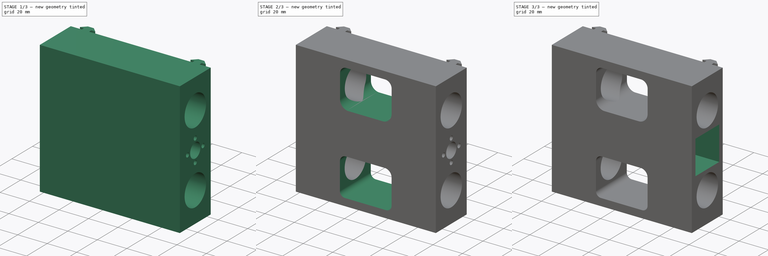
[diagram: build sequence overview — one tinted view per stage of 3, left to right]
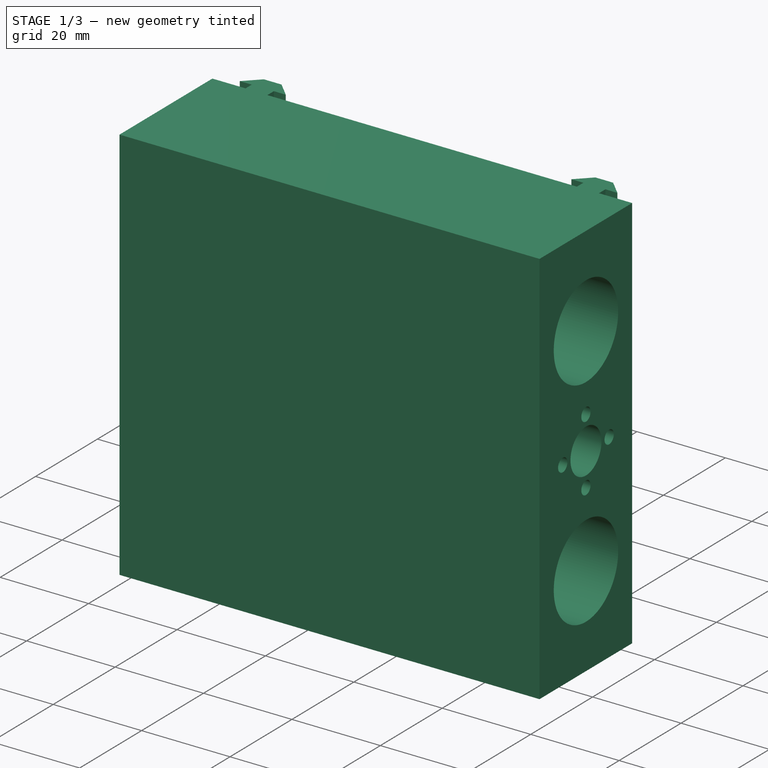
[diagram: stage 1 of 3 — iso view after this stage's code; geometry added in this stage tinted green]
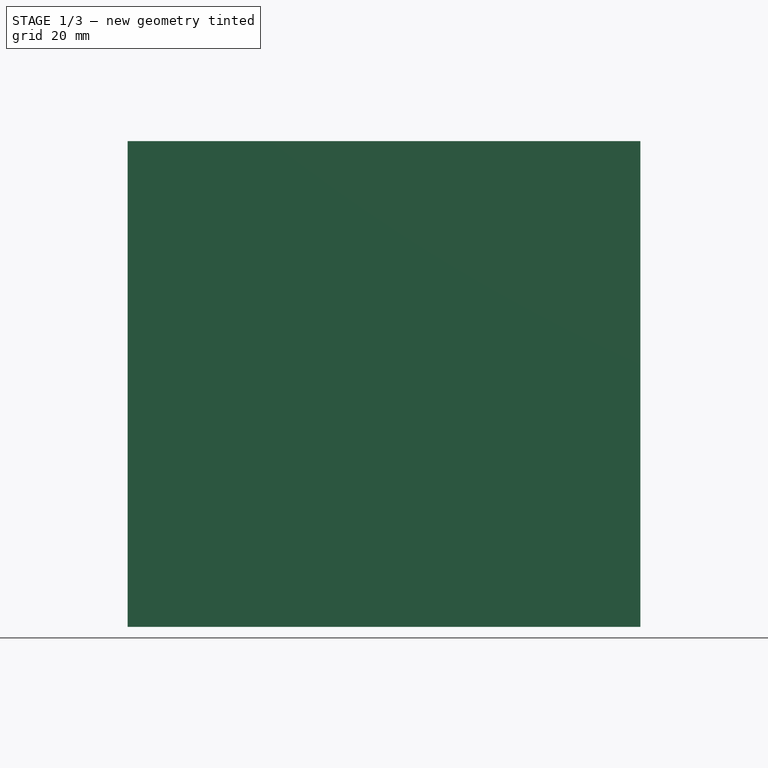
[diagram: stage 1 of 3 — front view after this stage's code; geometry added in this stage tinted green]
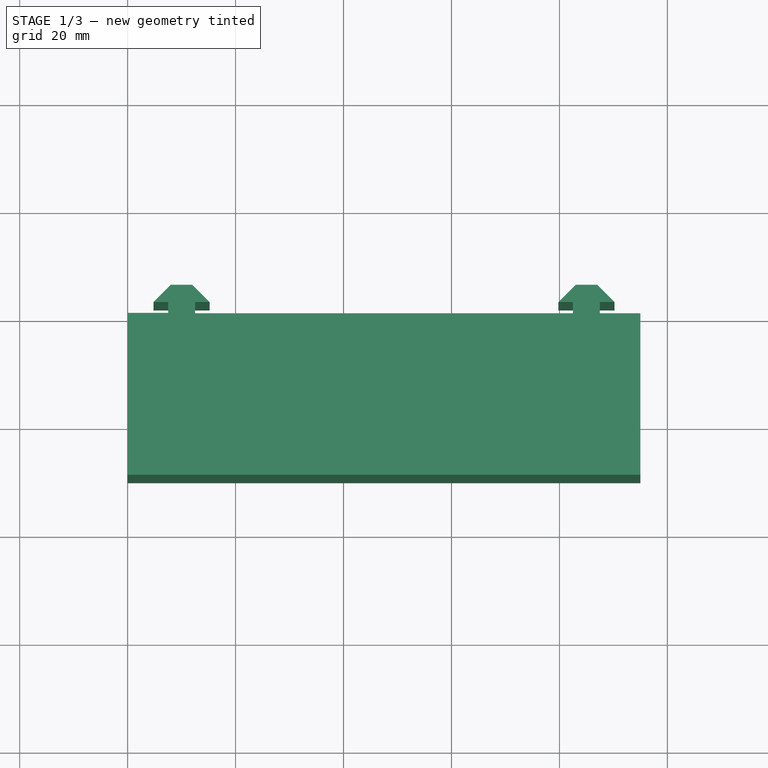
[diagram: stage 1 of 3 — top view after this stage's code; geometry added in this stage tinted green]
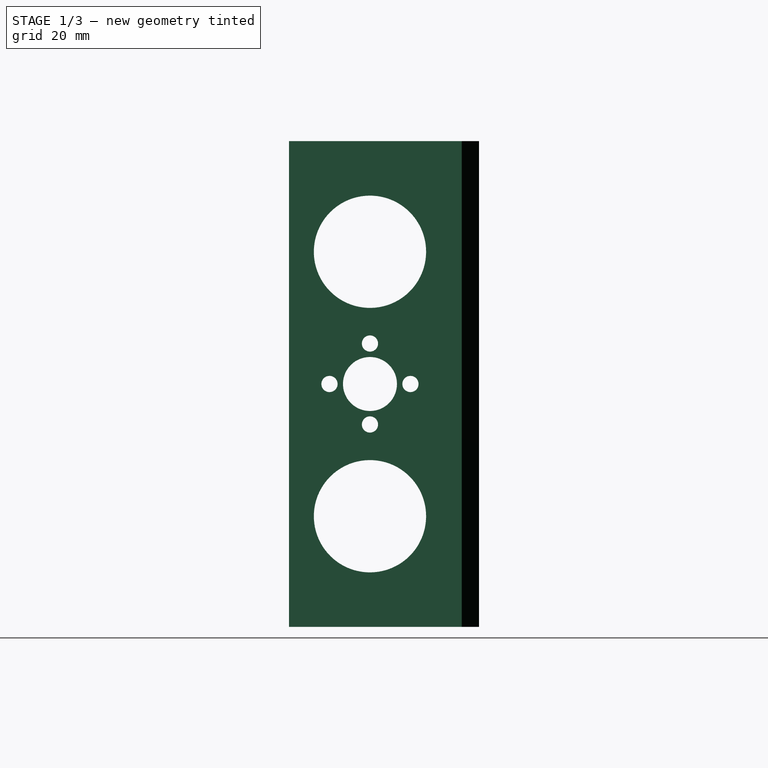
[diagram: stage 1 of 3 — right view after this stage's code; geometry added in this stage tinted green]
FCSTD DOCUMENT  (FreeCAD 0.18R4 (GitTag))
Label: support-y-back
License: All rights reserved
LicenseURL: http://en.wikipedia.org/wiki/All_rights_reserved
objects: Sketcher::SketchObject×5, PartDesign::Pocket×4, PartDesign::Pad×1, PartDesign::Body×1
note: 16 computed .brp shape members not serialized (recipe doc carries the construction recipe); baked Part::Feature solids carry a one-line shape summary decoded from their .brp

FEATURE [Sketcher::SketchObject] Sketch003
  MapMode = 5
  Placement = pos=(0,0,100) rot=(0,0,1;0rad)
  sketch-geometry (39):
    g0: LineSegment [constr] StartX=13 StartY=-0.5 StartZ=0 EndX=13 EndY=1.5 EndZ=0
    g1: LineSegment [constr] StartX=13 StartY=1.5 StartZ=0 EndX=16 EndY=1.5 EndZ=0
    g2: LineSegment [constr] StartX=16 StartY=1.5 StartZ=0 EndX=12 EndY=5.5 EndZ=0
    g3: LineSegment [constr] StartX=12 StartY=5.5 StartZ=0 EndX=8 EndY=5.5 EndZ=0
    g4: LineSegment [constr] StartX=8 StartY=5.5 StartZ=0 EndX=4 EndY=1.5 EndZ=0
    g5: LineSegment [constr] StartX=4 StartY=1.5 StartZ=0 EndX=7 EndY=1.5 EndZ=0
    g6: LineSegment [constr] StartX=7 StartY=1.5 StartZ=0 EndX=7 EndY=-0.5 EndZ=0
    g7: LineSegment StartX=7.5 StartY=0 StartZ=0 EndX=0 EndY=0 EndZ=0
    g8: LineSegment [constr] StartX=95 StartY=13.1875 StartZ=0 EndX=95 EndY=-40.4075 EndZ=0
    g9: GeomPoint X=47.5 Y=6.34377 Z=0
    g10: LineSegment [constr] StartX=47.5 StartY=30.795 StartZ=0 EndX=47.5 EndY=-44.5049 EndZ=0
    g11: LineSegment [constr] StartX=95 StartY=-0.5 StartZ=0 EndX=95 EndY=-20.0529 EndZ=0
    g12: LineSegment [constr] StartX=95 StartY=-20.0529 StartZ=0 EndX=0 EndY=-20.0529 EndZ=0
    g13: LineSegment StartX=7.5 StartY=0 StartZ=0 EndX=7.5 EndY=2 EndZ=0
    g14: LineSegment StartX=7.5 StartY=2 StartZ=0 EndX=4.8 EndY=2 EndZ=0
    g15: LineSegment StartX=4.8 StartY=2 StartZ=0 EndX=8 EndY=5.2 EndZ=0
    g16: LineSegment StartX=8 StartY=5.2 StartZ=0 EndX=12 EndY=5.2 EndZ=0
    g17: LineSegment StartX=12 StartY=5.2 StartZ=0 EndX=15.2 EndY=2 EndZ=0
    g18: LineSegment StartX=15.2 StartY=2 StartZ=0 EndX=12.5 EndY=2 EndZ=0
    g19: LineSegment StartX=12.5 StartY=2 StartZ=0 EndX=12.5 EndY=-0.086413 EndZ=0
    g20: LineSegment StartX=0 StartY=0 StartZ=0 EndX=0 EndY=-30 EndZ=0
    g21: LineSegment StartX=0 StartY=-30 StartZ=0 EndX=95 EndY=-30 EndZ=0
    g22: LineSegment StartX=95 StartY=-30 StartZ=0 EndX=95 EndY=-0.086413 EndZ=0
    g23: LineSegment [constr] StartX=82 StartY=-0.5 StartZ=0 EndX=82 EndY=1.5 EndZ=0
    g24: LineSegment [constr] StartX=82 StartY=1.5 StartZ=0 EndX=79 EndY=1.5 EndZ=0
    g25: LineSegment [constr] StartX=79 StartY=1.5 StartZ=0 EndX=83 EndY=5.5 EndZ=0
    g26: LineSegment [constr] StartX=83 StartY=5.5 StartZ=0 EndX=87 EndY=5.5 EndZ=0
    g27: LineSegment [constr] StartX=87 StartY=5.5 StartZ=0 EndX=91 EndY=1.5 EndZ=0
    g28: LineSegment [constr] StartX=91 StartY=1.5 StartZ=0 EndX=88 EndY=1.5 EndZ=0
    g29: LineSegment [constr] StartX=88 StartY=1.5 StartZ=0 EndX=88 EndY=-0.5 EndZ=0
    g30: LineSegment StartX=87.5 StartY=-0.086413 StartZ=0 EndX=95 EndY=-0.086413 EndZ=0
    g31: LineSegment StartX=87.5 StartY=-0.086413 StartZ=0 EndX=87.5 EndY=2 EndZ=0
    g32: LineSegment StartX=87.5 StartY=2 StartZ=0 EndX=90.2 EndY=2 EndZ=0
    g33: LineSegment StartX=90.2 StartY=2 StartZ=0 EndX=87 EndY=5.2 EndZ=0
    g34: LineSegment StartX=87 StartY=5.2 StartZ=0 EndX=83 EndY=5.2 EndZ=0
    g35: LineSegment StartX=83 StartY=5.2 StartZ=0 EndX=79.8 EndY=2 EndZ=0
    g36: LineSegment StartX=79.8 StartY=2 StartZ=0 EndX=82.5 EndY=2 EndZ=0
    g37: LineSegment StartX=82.5 StartY=2 StartZ=0 EndX=82.5 EndY=-0.086413 EndZ=0
    g38: LineSegment StartX=82.5 StartY=-0.086413 StartZ=0 EndX=12.5 EndY=-0.086413 EndZ=0
  constraints (76):
    c: Vertical(g8)
    c: Vertical(g10)
    c: PointOnObject(g9,g10)
    c: Vertical(g11)
    c: Block(g11)
    c: Coincident(g13,g14)
    c: Coincident(g14,g15)
    c: Coincident(g15,g16)
    c: Coincident(g16,g17)
    c: Coincident(g17,g18)
    c: Coincident(g18,g19)
    c: Vertical(g13)
    c: Vertical(g19)
    c: Horizontal(g14)
    c: Horizontal(g16)
    c: Horizontal(g18)
    c: Block(g0)
    c: Block(g1)
    c: Block(g2)
    c: Block(g3)
    c: Block(g4)
    c: Block(g5)
    c: Block(g6)
    c: DistanceX(g5,g13) = 0.5
    c: DistanceX(g3,g15) = 0
    c: DistanceX(g18,g0) = 0.5
    c: DistanceY(g5,g13) = 0.5
    c: DistanceY(g15,g3) = 0.3
    c: DistanceY(g0,g18) = 0.5
    c: Parallel(g4,g15)
    c: Parallel(g2,g17)
    c: DistanceX(g16,g2) = 0
    c: Horizontal(g7)
    c: Coincident(g20,g21)
    c: Coincident(g21,g22)
    c: Coincident(g20,g7)
    c: Coincident(g7,g13)
    c: Coincident(g7,g-1)
    c: Vertical(g20)
    c: Vertical(g22)
    c: Horizontal(g21)
    c: Coincident(g31,g32)
    c: Coincident(g32,g33)
    c: Coincident(g33,g34)
    c: Coincident(g34,g35)
    c: Coincident(g35,g36)
    c: Coincident(g36,g37)
    c: Vertical(g31)
    c: Vertical(g37)
    c: Horizontal(g32)
    c: Horizontal(g34)
    c: Horizontal(g36)
    c: Block(g23)
    c: Block(g24)
    c: Block(g25)
    c: Block(g26)
    c: Block(g27)
    c: Block(g28)
    c: Block(g29)
    c: Parallel(g27,g33)
    c: Parallel(g25,g35)
    c: Horizontal(g30)
    c: Coincident(g30,g31)
    c: DistanceY(g20,g7) = 30
    c: PointOnObject(g11,g8)
    c: PointOnObject(g22,g8)
    c: Horizontal(g38)
    c: Block(g37)
    c: Block(g36)
    c: Block(g35)
    c: Block(g34)
    c: Block(g33)
    c: Block(g32)
    c: Block(g31)
    c: Coincident(g38,g37)
    c: Coincident(g38,g19)
FEATURE [PartDesign::Pad] Pad
  Length = 90
  Length2 = 100
  Placement = pos=(0,0,100) rot=(0,0,1;0rad)
  Profile = -> Sketch003
  Type = 0
FEATURE [Sketcher::SketchObject] Sketch
  ExternalGeometry = -> [Pad]
  MapMode = 5
  Placement = pos=(95,0,100) rot=(0.57735,0.57735,0.57735;2.0944rad)
  Support = -> [Pad]
  sketch-geometry (10):
    g0: GeomPoint X=-15 Y=45 Z=0
    g1: LineSegment [constr] StartX=-30 StartY=45 StartZ=0 EndX=-0.086413 EndY=45 EndZ=0
    g2: LineSegment [constr] StartX=-15 StartY=90 StartZ=0 EndX=-15 EndY=0 EndZ=0
    g3: Circle CenterX=-15 CenterY=45 CenterZ=0 NormalX=0 NormalY=0 NormalZ=1 AngleXU=0 Radius=5
    g4: Circle CenterX=-15 CenterY=52.5 CenterZ=0 NormalX=0 NormalY=0 NormalZ=1 AngleXU=0 Radius=1.5
    g5: Circle CenterX=-22.5 CenterY=45 CenterZ=0 NormalX=0 NormalY=0 NormalZ=1 AngleXU=0 Radius=1.5
    g6: Circle CenterX=-15 CenterY=37.5 CenterZ=0 NormalX=0 NormalY=0 NormalZ=1 AngleXU=0 Radius=1.5
    g7: Circle CenterX=-7.5 CenterY=45 CenterZ=0 NormalX=0 NormalY=0 NormalZ=1 AngleXU=0 Radius=1.5
    g8: Circle CenterX=-15 CenterY=20.5 CenterZ=0 NormalX=0 NormalY=0 NormalZ=1 AngleXU=0 Radius=10.4
    g9: Circle CenterX=-15 CenterY=69.5 CenterZ=0 NormalX=0 NormalY=0 NormalZ=1 AngleXU=0 Radius=10.4
  constraints (29):
    c: Symmetric(g-6,g-1,g0)
    c: Vertical(g2)
    c: Horizontal(g1)
    c: PointOnObject(g0,g1)
    c: PointOnObject(g0,g2)
    c: PointOnObject(g2,g-3)
    c: PointOnObject(g1,g-5)
    c: PointOnObject(g2,g-4)
    c: PointOnObject(g1,g-6)
    c: Coincident(g3,g0)
    c: Diameter(g3) = 10
    c: Equal(g4,g5)
    c: Equal(g5,g6)
    c: Equal(g6,g7)
    c: Diameter(g4) = 3
    c: PointOnObject(g4,g2)
    c: PointOnObject(g6,g2)
    c: PointOnObject(g5,g1)
    c: PointOnObject(g7,g1)
    c: DistanceY(g0,g4) = 7.5
    c: DistanceY(g6,g0) = 7.5
    c: DistanceX(g5,g0) = 7.5
    c: DistanceX(g0,g7) = 7.5
    c: Equal(g9,g8)
    c: Diameter(g9) = 20.8
    c: PointOnObject(g9,g2)
    c: PointOnObject(g8,g2)
    c: DistanceY(g8,g0) = 24.5
    c: DistanceY(g0,g9) = 24.5
FEATURE [PartDesign::Pocket] Pocket
  BaseFeature = -> Pad
  Length = 95
  Length2 = 100
  Placement = pos=(0,0,100) rot=(0,0,1;0rad)
  Profile = -> Sketch
  Type = 0
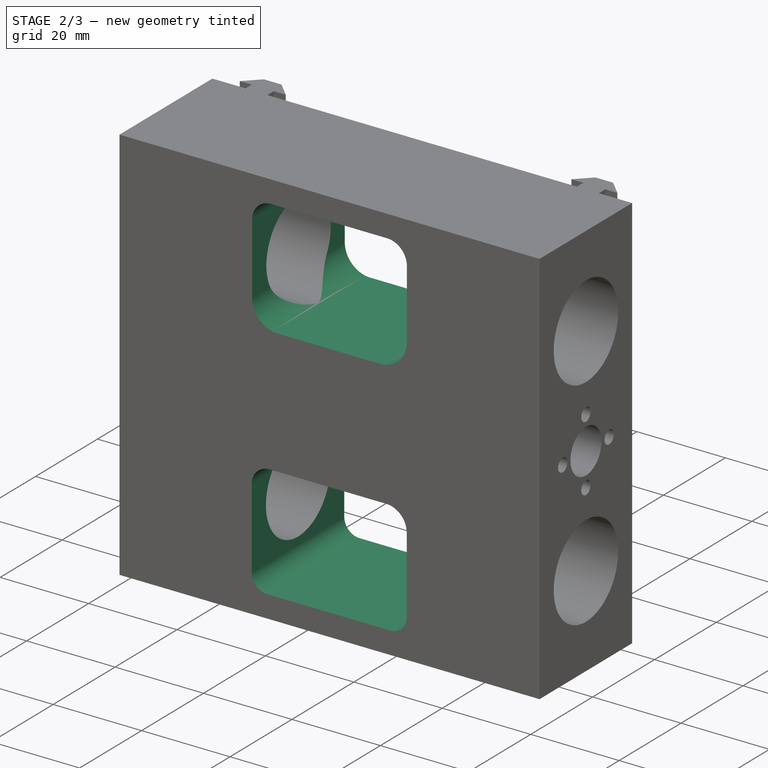
[diagram: stage 2 of 3 — iso view after this stage's code; geometry added in this stage tinted green]
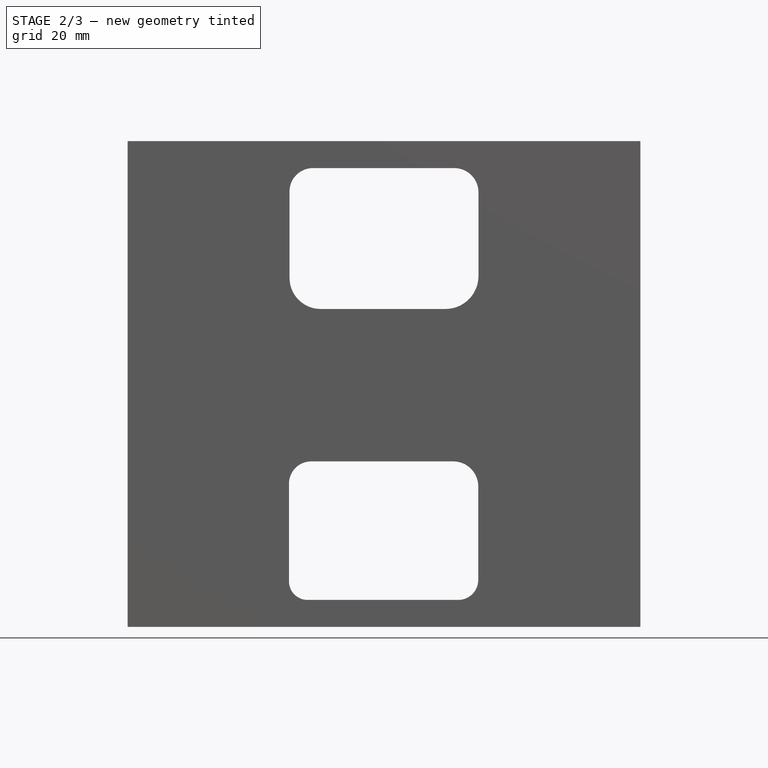
[diagram: stage 2 of 3 — front view after this stage's code; geometry added in this stage tinted green]
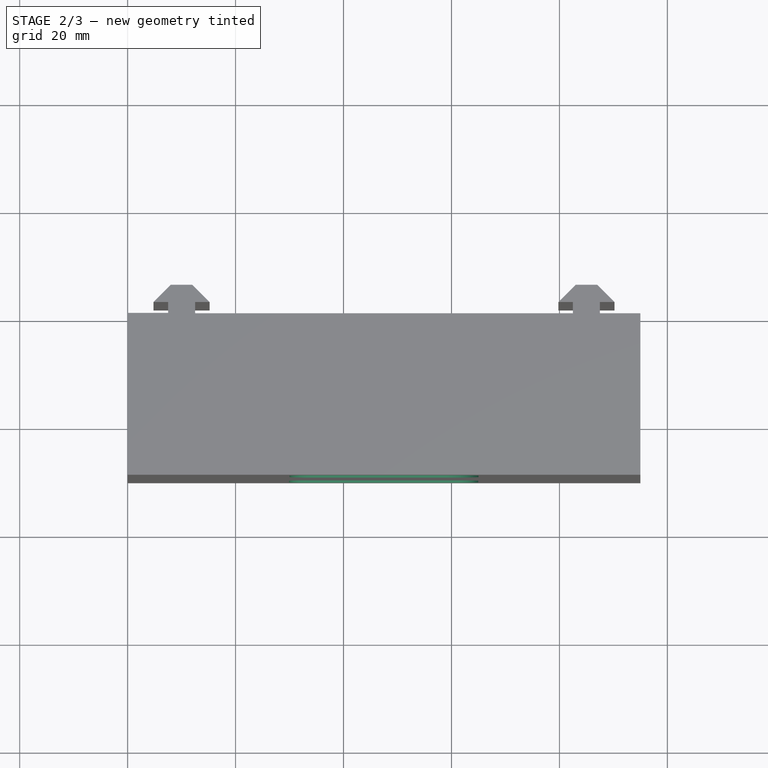
[diagram: stage 2 of 3 — top view after this stage's code; geometry added in this stage tinted green]
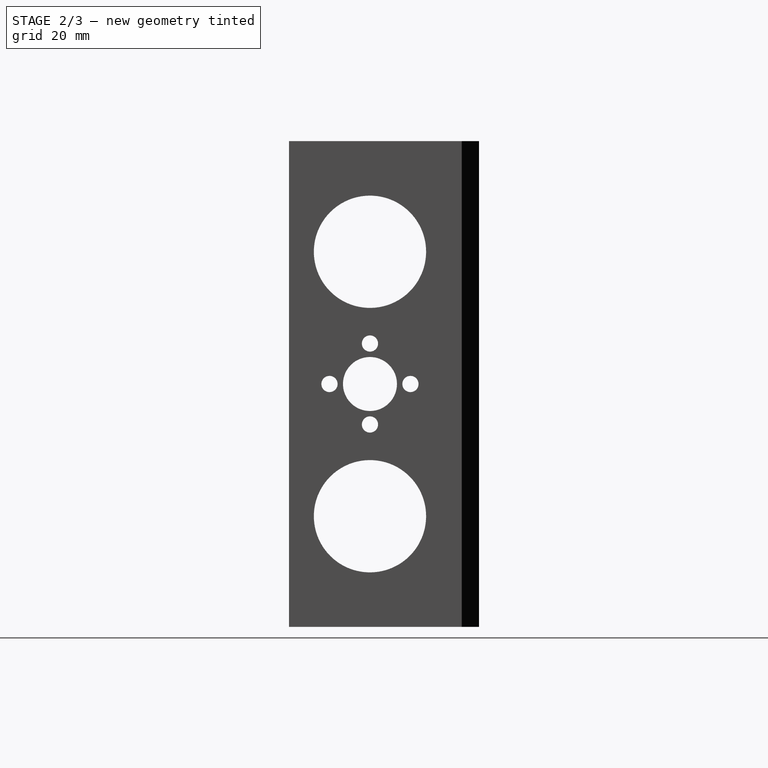
[diagram: stage 2 of 3 — right view after this stage's code; geometry added in this stage tinted green]
FEATURE [Sketcher::SketchObject] Sketch004
  ExternalGeometry = -> [Pocket]
  MapMode = 5
  Placement = pos=(0,-30,100) rot=(1,0,0;1.5708rad)
  Support = -> [Pocket]
  sketch-geometry (16):
    g0: LineSegment StartX=30 StartY=80.6815 StartZ=0 EndX=30 EndY=64.6541 EndZ=0
    g1: LineSegment StartX=65 StartY=80.5237 StartZ=0 EndX=65 EndY=65.007 EndZ=0
    g2: LineSegment StartX=35.7478 StartY=58.9064 StartZ=0 EndX=58.8994 EndY=58.9064 EndZ=0
    g3: LineSegment StartX=34.0056 StartY=30.6569 StartZ=0 EndX=60.3419 EndY=30.6569 EndZ=0
    g4: ArcOfCircle CenterX=35.7478 CenterY=64.6541 CenterZ=0 NormalX=0 NormalY=0 NormalZ=1 AngleXU=0 Radius=5.74778 StartAngle=3.14159 EndAngle=4.71239
    g5: ArcOfCircle CenterX=58.8994 CenterY=65.007 CenterZ=0 NormalX=0 NormalY=0 NormalZ=1 AngleXU=0 Radius=6.10064 StartAngle=4.71239 EndAngle=6.28319
    g6: LineSegment StartX=29.8985 StartY=8.43141 StartZ=0 EndX=29.8985 EndY=26.5498 EndZ=0
    g7: LineSegment StartX=64.957 StartY=8.69767 StartZ=0 EndX=64.957 EndY=26.0418 EndZ=0
    g8: ArcOfCircle CenterX=34.0056 CenterY=26.5498 CenterZ=0 NormalX=0 NormalY=0 NormalZ=1 AngleXU=0 Radius=4.10708 StartAngle=1.5708 EndAngle=3.14159
    g9: ArcOfCircle CenterX=60.3419 CenterY=26.0418 CenterZ=0 NormalX=0 NormalY=0 NormalZ=1 AngleXU=0 Radius=4.61508 StartAngle=0 EndAngle=1.5708
    g10: LineSegment StartX=33.3299 StartY=5 StartZ=0 EndX=61.2593 EndY=5 EndZ=0
    g11: LineSegment StartX=34.3185 StartY=85 StartZ=0 EndX=60.5237 EndY=85 EndZ=0
    g12: ArcOfCircle CenterX=34.3185 CenterY=80.6815 CenterZ=0 NormalX=0 NormalY=0 NormalZ=1 AngleXU=0 Radius=4.31851 StartAngle=1.5708 EndAngle=3.14159
    g13: ArcOfCircle CenterX=60.5237 CenterY=80.5237 CenterZ=0 NormalX=0 NormalY=0 NormalZ=1 AngleXU=0 Radius=4.47625 StartAngle=0 EndAngle=1.5708
    g14: ArcOfCircle CenterX=33.3299 CenterY=8.43141 CenterZ=0 NormalX=0 NormalY=0 NormalZ=1 AngleXU=0 Radius=3.43141 StartAngle=3.14159 EndAngle=4.71239
    g15: ArcOfCircle CenterX=61.2593 CenterY=8.69767 CenterZ=0 NormalX=0 NormalY=0 NormalZ=1 AngleXU=0 Radius=3.69767 StartAngle=4.71239 EndAngle=6.28319
  constraints (22):
    c: Vertical(g0)
    c: Vertical(g1)
    c: Horizontal(g2)
    c: Horizontal(g3)
    c: Tangent(g0,g4) = -1.5708
    c: Tangent(g2,g4) = -1.5708
    c: Tangent(g1,g5) = 1.5708
    c: Tangent(g2,g5) = -1.5708
    c: Vertical(g6)
    c: Vertical(g7)
    c: Tangent(g6,g8) = 1.5708
    c: Tangent(g3,g8) = 1.5708
    c: Tangent(g7,g9) = -1.5708
    c: Tangent(g3,g9) = 1.5708
    c: Tangent(g0,g12) = -1.5708
    c: Tangent(g11,g12) = 1.5708
    c: Tangent(g1,g13) = 1.5708
    c: Tangent(g11,g13) = 1.5708
    c: Tangent(g6,g14) = 1.5708
    c: Tangent(g10,g14) = -1.5708
    c: Tangent(g10,g15) = -1.5708
    c: Tangent(g7,g15) = -1.5708
FEATURE [PartDesign::Pocket] Pocket001
  BaseFeature = -> Pocket
  Length = 32
  Length2 = 100
  Placement = pos=(0,0,100) rot=(0,0,1;0rad)
  Profile = -> Sketch004
  Type = 0
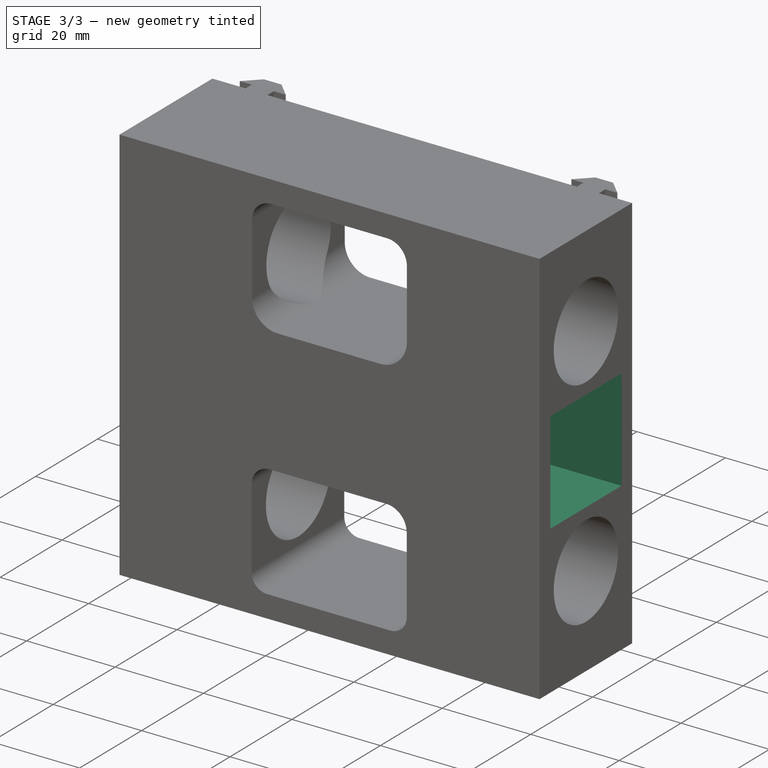
[diagram: stage 3 of 3 — iso view after this stage's code; geometry added in this stage tinted green]
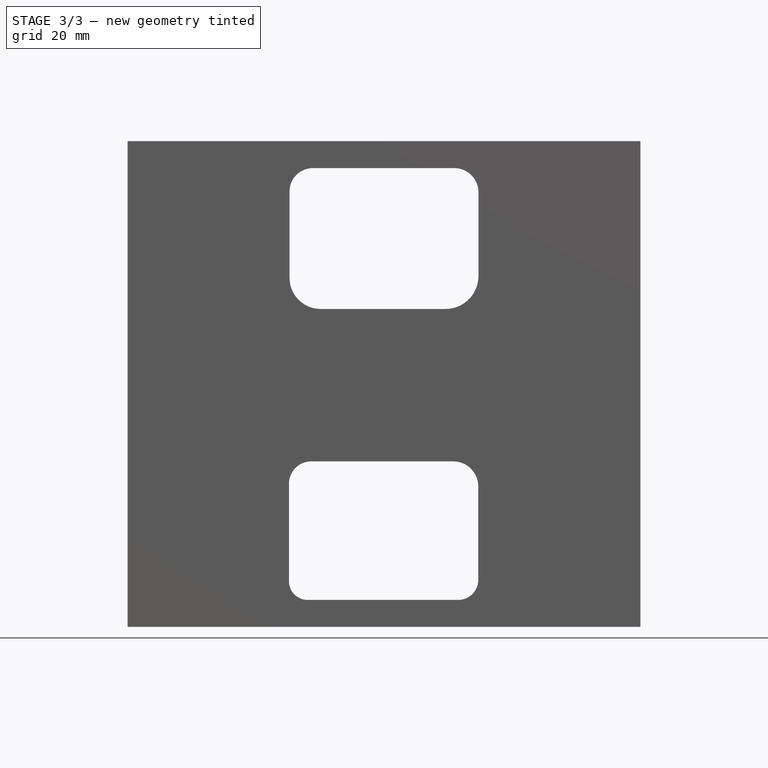
[diagram: stage 3 of 3 — front view after this stage's code; geometry added in this stage tinted green]
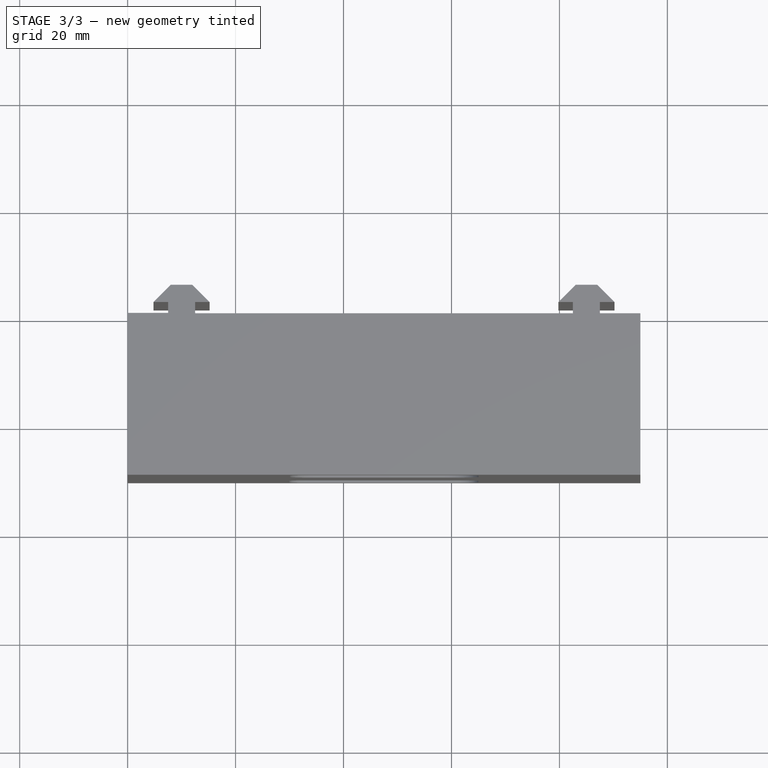
[diagram: stage 3 of 3 — top view after this stage's code; geometry added in this stage tinted green]
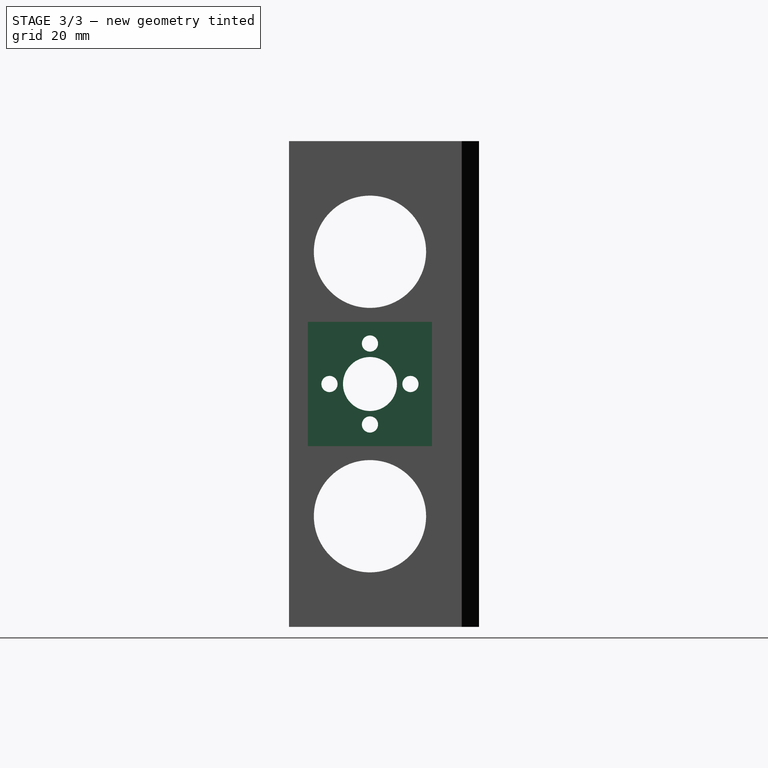
[diagram: stage 3 of 3 — right view after this stage's code; geometry added in this stage tinted green]
FEATURE [Sketcher::SketchObject] Sketch005
  ExternalGeometry = -> [Pocket001]
  MapMode = 5
  Placement = pos=(0,0,100) rot=(0.57735,-0.57735,-0.57735;2.0944rad)
  Support = -> [Pocket001]
  sketch-geometry (4):
    g0: LineSegment StartX=3.5 StartY=56.5 StartZ=0 EndX=26.5 EndY=56.5 EndZ=0
    g1: LineSegment StartX=26.5 StartY=56.5 StartZ=0 EndX=26.5 EndY=33.5 EndZ=0
    g2: LineSegment StartX=26.5 StartY=33.5 StartZ=0 EndX=3.5 EndY=33.5 EndZ=0
    g3: LineSegment StartX=3.5 StartY=33.5 StartZ=0 EndX=3.5 EndY=56.5 EndZ=0
  constraints (11):
    c: Coincident(g0,g1)
    c: Coincident(g1,g2)
    c: Coincident(g2,g3)
    c: Coincident(g3,g0)
    c: Horizontal(g0)
    c: Horizontal(g2)
    c: Vertical(g1)
    c: Vertical(g3)
    c: Symmetric(g0,g1,g-3)
    c: Equal(g0,g1)
    c: DistanceY(g1,g1) = 23
FEATURE [PartDesign::Pocket] Pocket002
  BaseFeature = -> Pocket001
  Length = 20
  Length2 = 100
  Placement = pos=(0,0,100) rot=(0,0,1;0rad)
  Profile = -> Sketch005
  Type = 0
FEATURE [Sketcher::SketchObject] Sketch006
  ExternalGeometry = -> [Pocket002]
  MapMode = 5
  Placement = pos=(95,0,100) rot=(0.57735,0.57735,0.57735;2.0944rad)
  Support = -> [Pocket002]
  sketch-geometry (4):
    g0: LineSegment StartX=-26.5 StartY=56.5 StartZ=0 EndX=-3.5 EndY=56.5 EndZ=0
    g1: LineSegment StartX=-3.5 StartY=56.5 StartZ=0 EndX=-3.5 EndY=33.5 EndZ=0
    g2: LineSegment StartX=-3.5 StartY=33.5 StartZ=0 EndX=-26.5 EndY=33.5 EndZ=0
    g3: LineSegment StartX=-26.5 StartY=33.5 StartZ=0 EndX=-26.5 EndY=56.5 EndZ=0
  constraints (11):
    c: Coincident(g0,g1)
    c: Coincident(g1,g2)
    c: Coincident(g2,g3)
    c: Coincident(g3,g0)
    c: Horizontal(g0)
    c: Horizontal(g2)
    c: Vertical(g1)
    c: Vertical(g3)
    c: Symmetric(g0,g1,g-3)
    c: Equal(g0,g1)
    c: DistanceY(g1,g1) = 23
FEATURE [PartDesign::Pocket] Pocket003
  BaseFeature = -> Pocket002
  Length = 20
  Length2 = 100
  Placement = pos=(0,0,100) rot=(0,0,1;0rad)
  Profile = -> Sketch006
  Type = 0
FEATURE [PartDesign::Body] Body
  Group = -> [Sketch003,Pad,Sketch,Pocket,Sketch004,Pocket001,Sketch005,Pocket002,Sketch006,Pocket003]
  Origin = -> Origin
  Tip = -> Pocket003
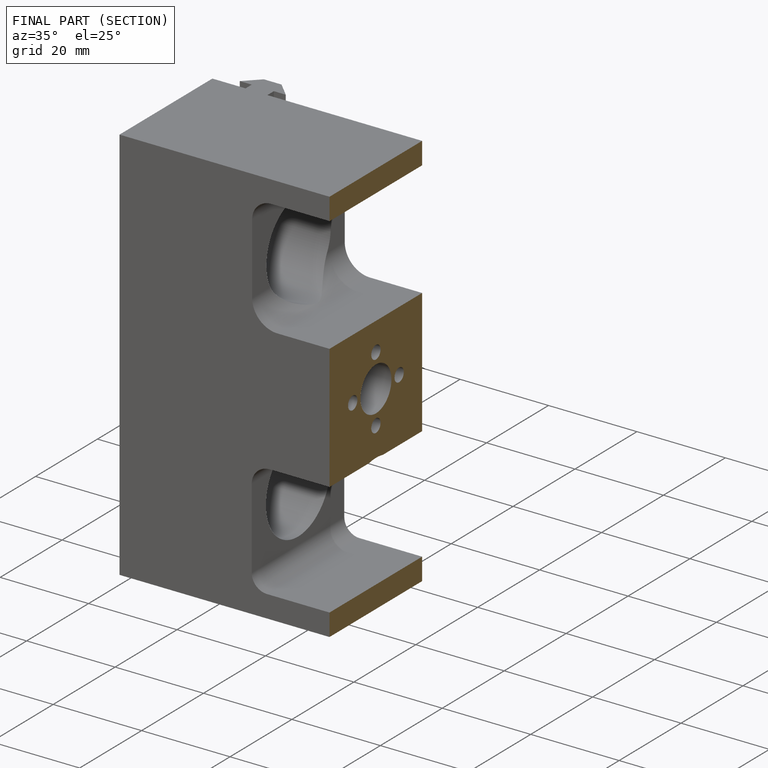
[diagram: finished part — half-section view (interior)]
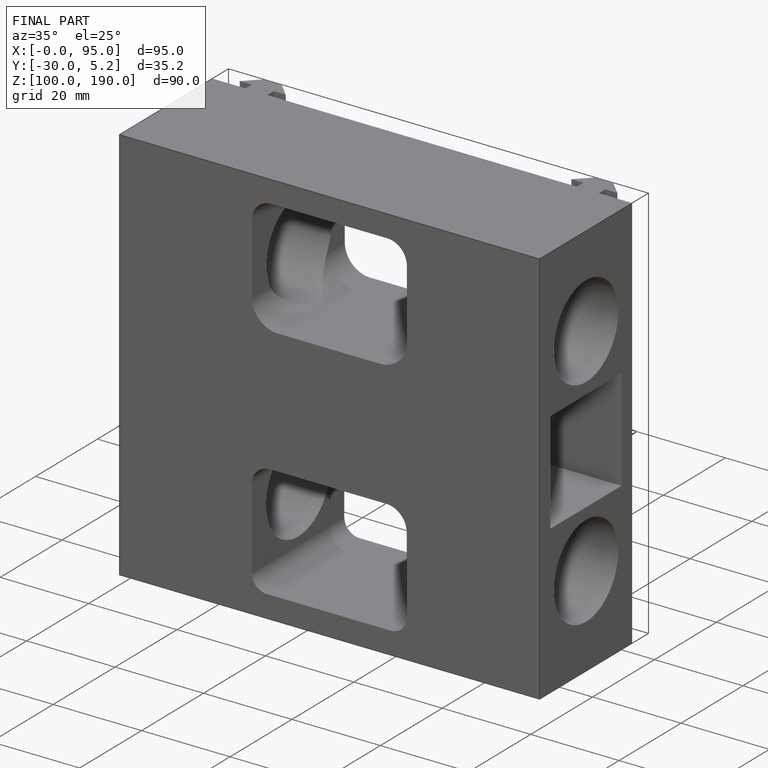
[diagram: finished part — iso view with bounding-box wireframe]
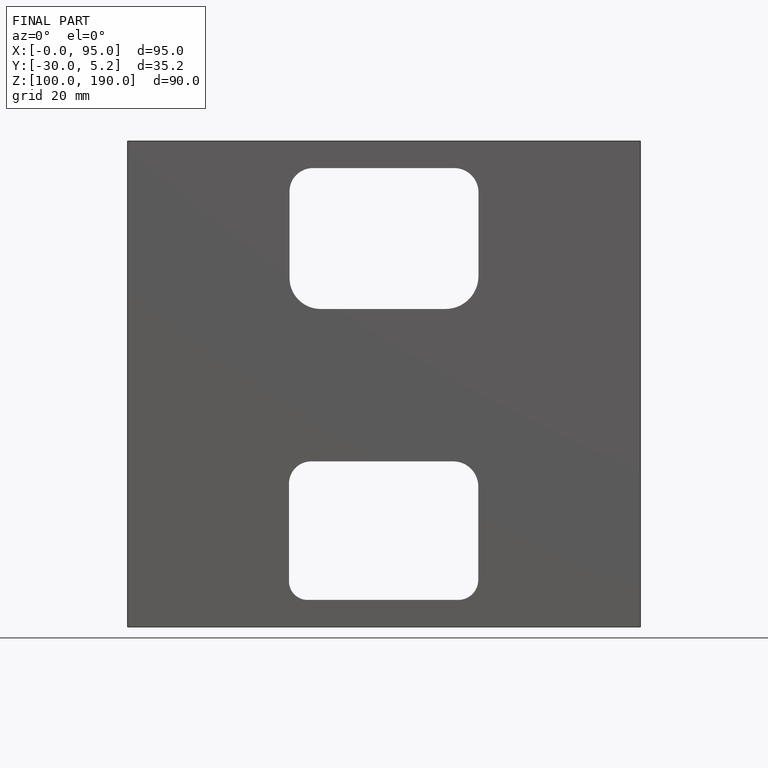
[diagram: finished part — front view with bounding-box wireframe]
